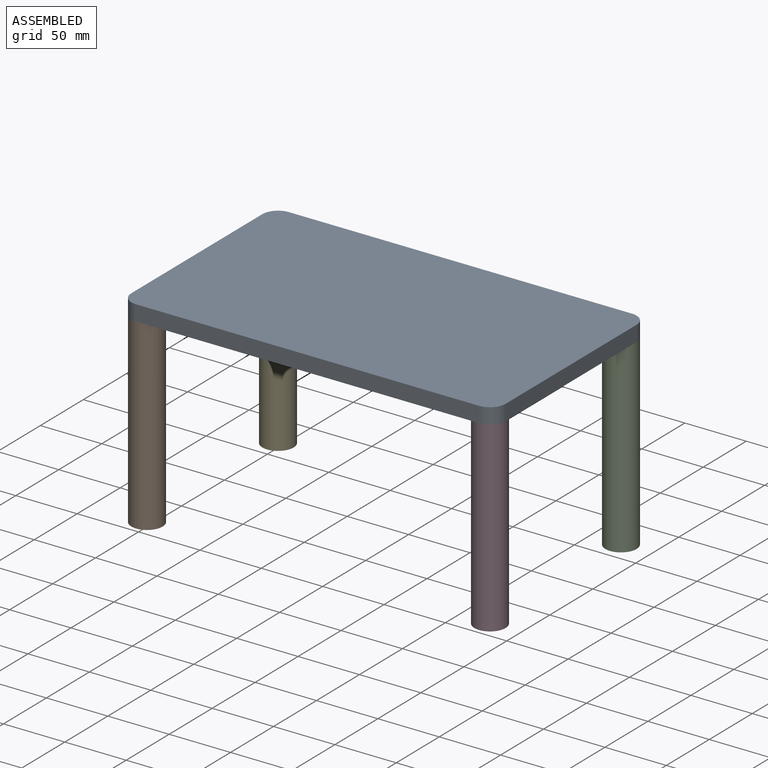
[diagram: assembled view]
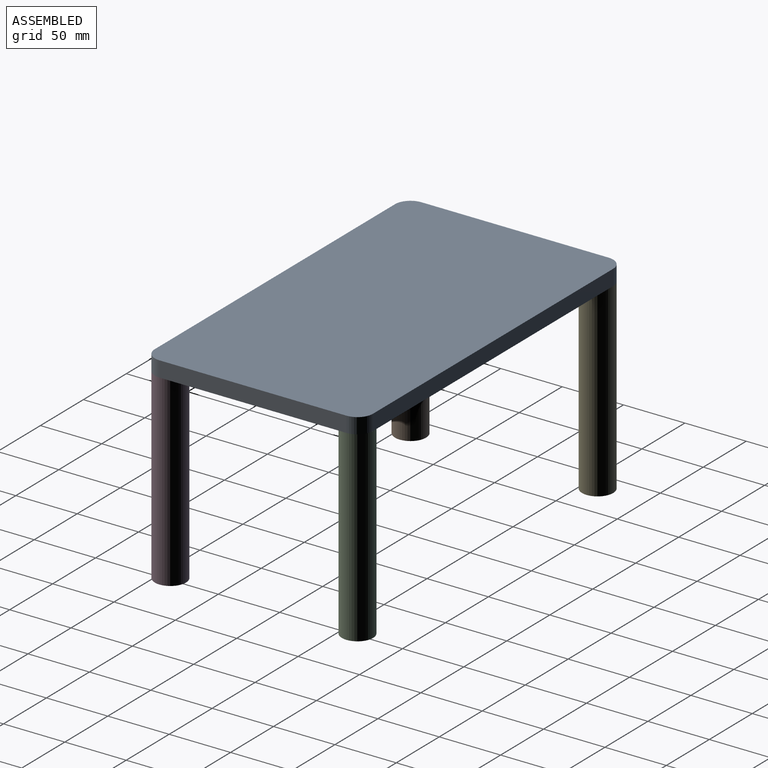
[diagram: assembled view, second angle]
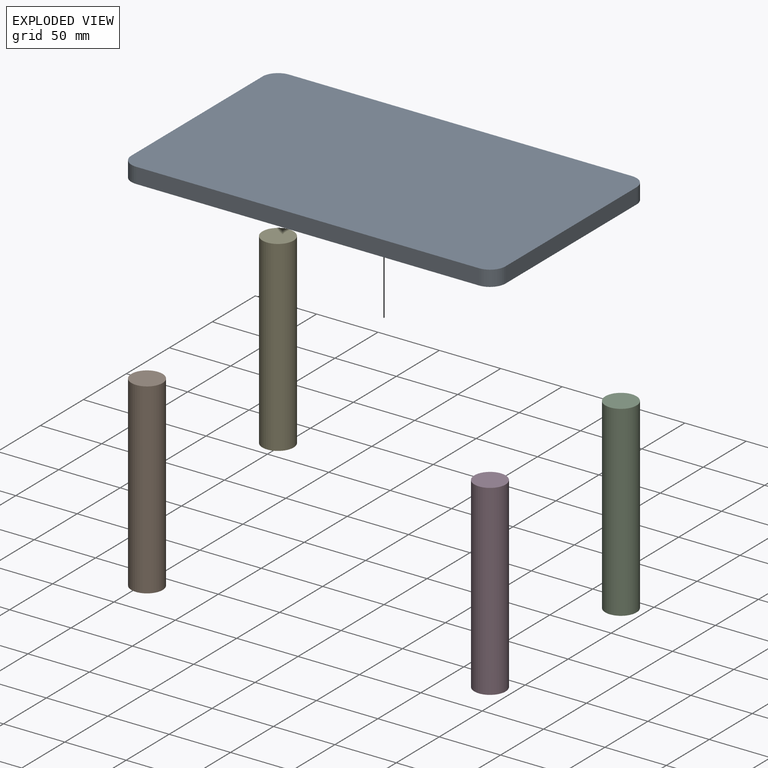
[diagram: exploded view]
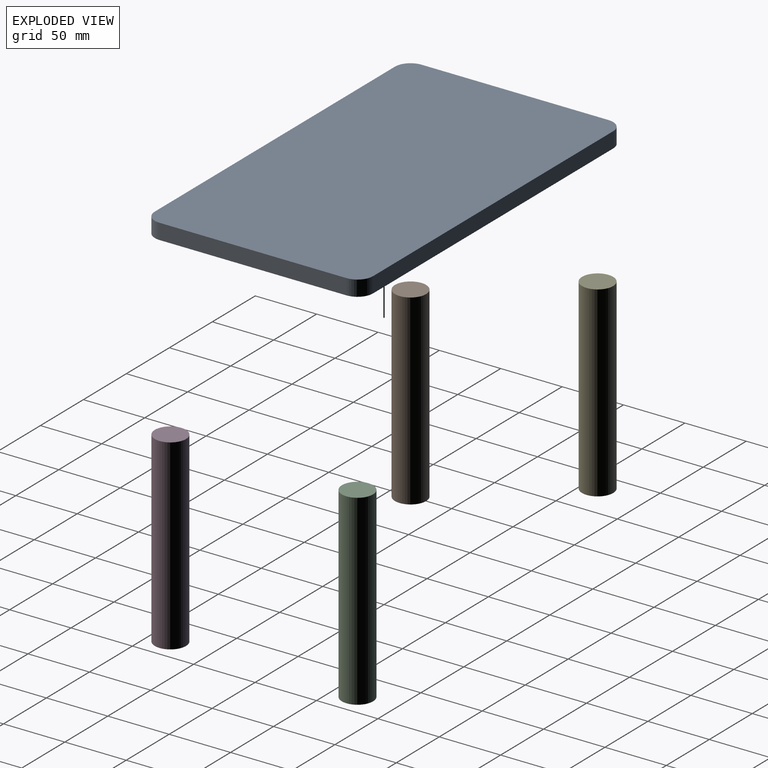
[diagram: exploded view, second angle]
ASSEMBLY  parts=5 mates=4
PART A: 10 faces, bbox 304.8x177.8x12.7 mm
  f0: plane 152.4x12.7mm, normal (-1,0,0), area 1935.5mm2, adj f1,f7,f8,f9
  f1: cylinder r=12.7mm len=12.7mm, axis (0,0,-1), area 253.4mm2, adj f0,f2,f8,f9
  f2: plane 279.4x12.7mm, normal (0,-1,0), area 3548.4mm2, adj f1,f3,f8,f9
  f3: cylinder r=12.7mm len=12.7mm, axis (0,0,-1), area 253.4mm2, adj f2,f4,f8,f9
  f4: plane 152.4x12.7mm, normal (1,0,0), area 1935.5mm2, adj f3,f5,f8,f9
  f5: cylinder r=12.7mm len=12.7mm, axis (0,0,-1), area 253.4mm2, adj f4,f6,f8,f9
  f6: plane 279.4x12.7mm, normal (0,1,0), area 3548.4mm2, adj f5,f7,f8,f9
  f7: cylinder r=12.7mm len=12.7mm, axis (0,0,-1), area 253.4mm2, adj f0,f6,f8,f9
  f8: plane 304.8x177.8mm, normal (0,0,1), area 54055mm2, adj f0,f1,f2,f3,f4,f5,f6,f7
  f9: plane 304.8x177.8mm, normal (0,0,-1), area 54055mm2, adj f0,f1,f2,f3,f4,f5,f6,f7
PART B: 3 faces, bbox 25.4x25.4x152.4 mm
  f0: cylinder r=12.7mm len=152.4mm, axis (0,0,1), area 12161mm2, adj f1,f2
  f1: plane 25.4x25.4mm, normal (0,0,-1), area 506.7mm2, adj f0
  f2: plane 25.4x25.4mm, normal (0,0,1), area 506.7mm2, adj f0
PART C: same geometry as B
PART D: same geometry as B
PART E: same geometry as B
PLACE A at identity
PLACE B t=(-139.7,-76.2,0)mm
PLACE C t=(139.7,76.2,0)mm
PLACE D t=(139.7,-76.2,0)mm
PLACE E t=(-139.7,76.2,0)mm
MATE fastened B.f0 <-> A.f1  axis (0,0,1) through (-139.7,-76.2,0)mm
MATE fastened D.f0 <-> A.f3  axis (0,0,1) through (139.7,-76.2,0)mm
MATE fastened C.f0 <-> A.f5  axis (0,0,1) through (139.7,76.2,0)mm
MATE fastened E.f0 <-> A.f7  axis (0,0,1) through (-139.7,76.2,0)mm
